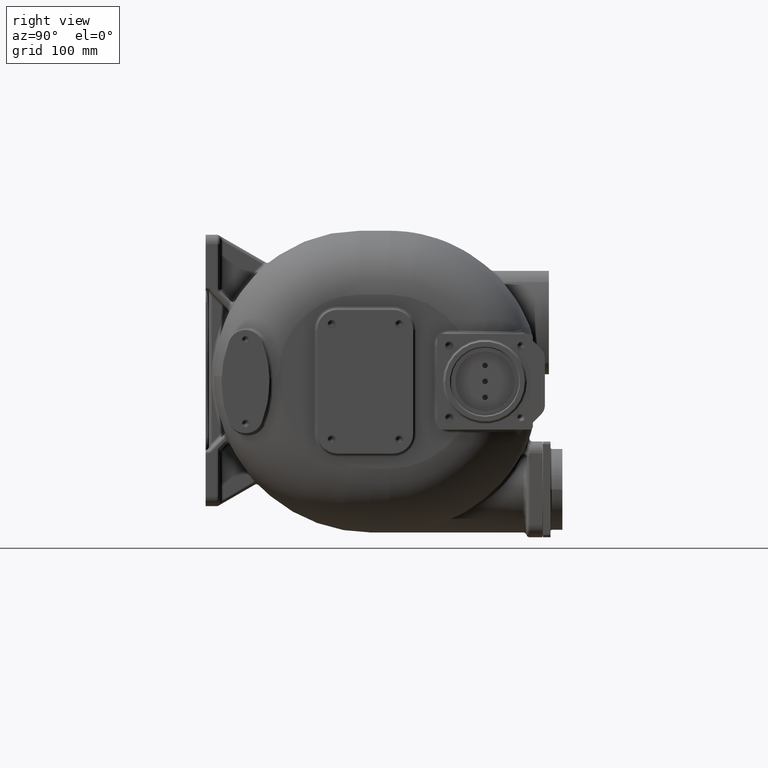
[diagram: clean part render]
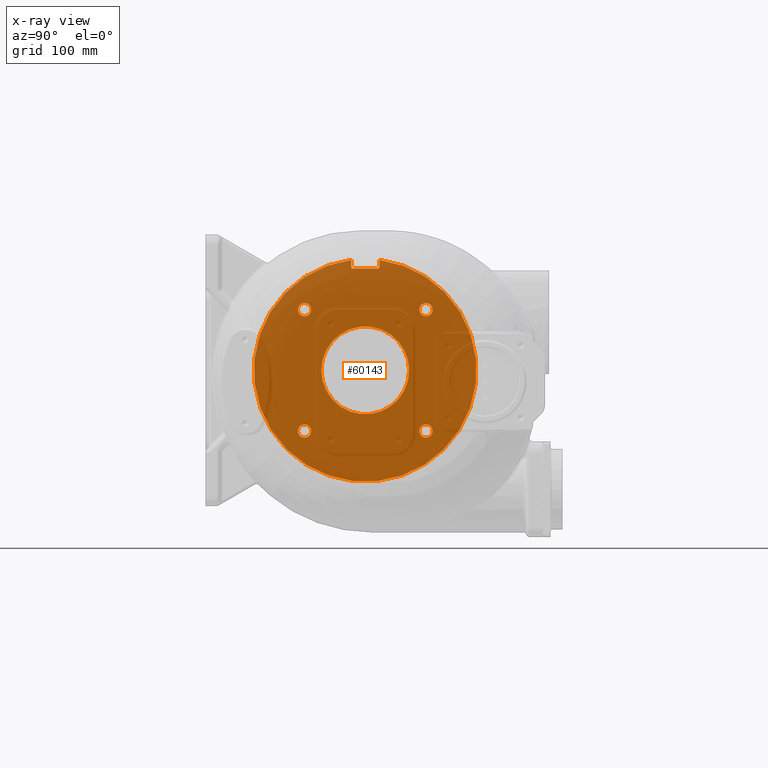
[diagram: x-ray — body ghosted, one internal face saturated and labeled with its STEP entity id]
A machine part, right view, then the same camera in x-ray: the body is ghosted and one INTERNAL B-rep face — a face not visible from any outside direction — is saturated and labeled: STEP entity #60143.
In plain terms, the highlighted planar face has unit normal (-1, 0, 0).
Its self-contained STEP definition (entity closure, byte-faithful):
#7349=CARTESIAN_POINT('',(-4.4E1,2.E2,0.E0));
#7350=DIRECTION('',(-1.E0,0.E0,0.E0));
#7351=DIRECTION('',(0.E0,-1.E0,0.E0));
#7352=AXIS2_PLACEMENT_3D('',#7349,#7350,#7351);
#7462=CARTESIAN_POINT('',(-4.4E1,2.E2,0.E0));
#7463=DIRECTION('',(1.E0,0.E0,0.E0));
#7464=DIRECTION('',(0.E0,-1.E0,0.E0));
#7465=AXIS2_PLACEMENT_3D('',#7462,#7463,#7464);
#9563=CARTESIAN_POINT('',(-4.4E1,1.239860210224E2,-7.601397897755E1));
#9564=DIRECTION('',(-1.E0,0.E0,0.E0));
#9565=DIRECTION('',(0.E0,1.E0,0.E0));
#9566=AXIS2_PLACEMENT_3D('',#9563,#9564,#9565);
#9568=CARTESIAN_POINT('',(-4.4E1,1.239860210224E2,-7.601397897755E1));
#9569=DIRECTION('',(-1.E0,0.E0,0.E0));
#9570=DIRECTION('',(0.E0,-1.E0,0.E0));
#9571=AXIS2_PLACEMENT_3D('',#9568,#9569,#9570);
#9573=CARTESIAN_POINT('',(-4.4E1,1.239860210224E2,7.601397897755E1));
#9574=DIRECTION('',(-1.E0,0.E0,0.E0));
#9575=DIRECTION('',(0.E0,0.E0,-1.E0));
#9576=AXIS2_PLACEMENT_3D('',#9573,#9574,#9575);
#9578=CARTESIAN_POINT('',(-4.4E1,1.239860210224E2,7.601397897755E1));
#9579=DIRECTION('',(-1.E0,0.E0,0.E0));
#9580=DIRECTION('',(0.E0,0.E0,1.E0));
#9581=AXIS2_PLACEMENT_3D('',#9578,#9579,#9580);
#9583=CARTESIAN_POINT('',(-4.4E1,2.760139789776E2,7.601397897755E1));
#9584=DIRECTION('',(-1.E0,0.E0,0.E0));
#9585=DIRECTION('',(0.E0,-1.E0,0.E0));
#9586=AXIS2_PLACEMENT_3D('',#9583,#9584,#9585);
#9588=CARTESIAN_POINT('',(-4.4E1,2.760139789776E2,7.601397897755E1));
#9589=DIRECTION('',(-1.E0,0.E0,0.E0));
#9590=DIRECTION('',(0.E0,1.E0,0.E0));
#9591=AXIS2_PLACEMENT_3D('',#9588,#9589,#9590);
#9593=CARTESIAN_POINT('',(-4.4E1,2.760139789776E2,-7.601397897755E1));
#9594=DIRECTION('',(-1.E0,0.E0,0.E0));
#9595=DIRECTION('',(0.E0,0.E0,1.E0));
#9596=AXIS2_PLACEMENT_3D('',#9593,#9594,#9595);
#9598=CARTESIAN_POINT('',(-4.4E1,2.760139789776E2,-7.601397897755E1));
#9599=DIRECTION('',(-1.E0,0.E0,0.E0));
#9600=DIRECTION('',(0.E0,0.E0,-1.E0));
#9601=AXIS2_PLACEMENT_3D('',#9598,#9599,#9600);
#9643=DIRECTION('',(0.E0,0.E0,-1.E0));
#9644=VECTOR('',#9643,8.485506485283E0);
#9645=CARTESIAN_POINT('',(-4.4E1,2.175E2,1.379855064853E2));
#9646=LINE('',#9645,#9644);
#9799=DIRECTION('',(0.E0,0.E0,1.E0));
#9800=VECTOR('',#9799,8.485506485283E0);
#9801=CARTESIAN_POINT('',(-4.4E1,1.825E2,1.295E2));
#9802=LINE('',#9801,#9800);
#9847=CARTESIAN_POINT('',(-4.4E1,1.795E2,1.379855064853E2));
#9848=DIRECTION('',(-1.E0,0.E0,0.E0));
#9849=DIRECTION('',(0.E0,9.906663756214E-1,1.363089586677E-1));
#9850=AXIS2_PLACEMENT_3D('',#9847,#9848,#9849);
#9852=CARTESIAN_POINT('',(-4.4E1,2.E2,0.E0));
#9853=DIRECTION('',(-1.E0,0.E0,0.E0));
#9854=DIRECTION('',(0.E0,1.256487517788E-1,9.920747911203E-1));
#9855=AXIS2_PLACEMENT_3D('',#9852,#9853,#9854);
#18493=CARTESIAN_POINT('',(-4.4E1,2.205E2,1.379855064853E2));
#18494=DIRECTION('',(1.E0,0.E0,0.E0));
#18495=DIRECTION('',(0.E0,-9.906663756214E-1,1.363089586677E-1));
#18496=AXIS2_PLACEMENT_3D('',#18493,#18494,#18495);
#18502=CARTESIAN_POINT('',(-4.4E1,1.845E2,1.295E2));
#18503=DIRECTION('',(1.E0,0.E0,0.E0));
#18504=DIRECTION('',(0.E0,-1.E0,1.421085471520E-14));
#18505=AXIS2_PLACEMENT_3D('',#18502,#18503,#18504);
#18517=DIRECTION('',(0.E0,-1.E0,0.E0));
#18518=VECTOR('',#18517,3.1E1);
#18519=CARTESIAN_POINT('',(-4.4E1,2.155E2,1.275E2));
#18520=LINE('',#18519,#18518);
#18533=CARTESIAN_POINT('',(-4.4E1,2.155E2,1.295E2));
#18534=DIRECTION('',(1.E0,0.E0,0.E0));
#18535=DIRECTION('',(0.E0,-2.131628207280E-13,-1.E0));
#18536=AXIS2_PLACEMENT_3D('',#18533,#18534,#18535);
#40832=CARTESIAN_POINT('',(-4.4E1,1.45E2,0.E0));
#40834=VERTEX_POINT('',#40832);
#40836=CARTESIAN_POINT('',(-4.4E1,2.55E2,-1.200608190966E-14));
#40838=VERTEX_POINT('',#40836);
#40840=CARTESIAN_POINT('',(-4.4E1,2.175E2,1.379855064853E2));
#40841=CARTESIAN_POINT('',(-4.4E1,2.175E2,1.295E2));
#40842=VERTEX_POINT('',#40840);
#40843=VERTEX_POINT('',#40841);
#40844=CARTESIAN_POINT('',(-4.4E1,2.155E2,1.275E2));
#40845=CARTESIAN_POINT('',(-4.4E1,1.845E2,1.275E2));
#40846=VERTEX_POINT('',#40844);
#40847=VERTEX_POINT('',#40845);
#40848=CARTESIAN_POINT('',(-4.4E1,1.825E2,1.295E2));
#40849=CARTESIAN_POINT('',(-4.4E1,1.825E2,1.379855064853E2));
#40850=VERTEX_POINT('',#40848);
#40851=VERTEX_POINT('',#40849);
#40866=CARTESIAN_POINT('',(-4.4E1,2.175280008731E2,1.383944333613E2));
#40867=VERTEX_POINT('',#40866);
#40868=CARTESIAN_POINT('',(-4.4E1,1.824719991269E2,1.383944333613E2));
#40869=VERTEX_POINT('',#40868);
#40892=CARTESIAN_POINT('',(-4.4E1,1.322360210224E2,-7.601397897755E1));
#40893=CARTESIAN_POINT('',(-4.4E1,1.157360210224E2,-7.601397897755E1));
#40894=VERTEX_POINT('',#40892);
#40895=VERTEX_POINT('',#40893);
#40900=CARTESIAN_POINT('',(-4.4E1,1.239860210224E2,6.776397897755E1));
#40901=VERTEX_POINT('',#40900);
#40902=CARTESIAN_POINT('',(-4.4E1,1.239860210224E2,8.426397897755E1));
#40903=VERTEX_POINT('',#40902);
#40908=CARTESIAN_POINT('',(-4.4E1,2.677639789776E2,7.601397897755E1));
#40909=VERTEX_POINT('',#40908);
#40910=CARTESIAN_POINT('',(-4.4E1,2.842639789776E2,7.601397897755E1));
#40911=VERTEX_POINT('',#40910);
#40916=CARTESIAN_POINT('',(-4.4E1,2.760139789776E2,-6.776397897755E1));
#40917=VERTEX_POINT('',#40916);
#40918=CARTESIAN_POINT('',(-4.4E1,2.760139789776E2,-8.426397897755E1));
#40919=VERTEX_POINT('',#40918);
#60092=CARTESIAN_POINT('',(-4.4E1,2.E2,0.E0));
#60093=DIRECTION('',(-1.E0,0.E0,0.E0));
#60094=DIRECTION('',(0.E0,1.E0,0.E0));
#60095=AXIS2_PLACEMENT_3D('',#60092,#60093,#60094);
#60096=PLANE('',#60095);
#60098=ORIENTED_EDGE('',*,*,#60097,.T.);
#60100=ORIENTED_EDGE('',*,*,#60099,.F.);
#60102=ORIENTED_EDGE('',*,*,#60101,.T.);
#60104=ORIENTED_EDGE('',*,*,#60103,.F.);
#60106=ORIENTED_EDGE('',*,*,#60105,.T.);
#60108=ORIENTED_EDGE('',*,*,#60107,.F.);
#60110=ORIENTED_EDGE('',*,*,#60109,.F.);
#60112=ORIENTED_EDGE('',*,*,#60111,.T.);
#60113=EDGE_LOOP('',(#60098,#60100,#60102,#60104,#60106,#60108,#60110,#60112));
#60114=FACE_OUTER_BOUND('',#60113,.F.);
#60115=ORIENTED_EDGE('',*,*,#53421,.T.);
#60116=ORIENTED_EDGE('',*,*,#53571,.F.);
#60117=EDGE_LOOP('',(#60115,#60116));
#60118=FACE_BOUND('',#60117,.F.);
#60120=ORIENTED_EDGE('',*,*,#60119,.T.);
#60122=ORIENTED_EDGE('',*,*,#60121,.T.);
#60123=EDGE_LOOP('',(#60120,#60122));
#60124=FACE_BOUND('',#60123,.F.);
#60126=ORIENTED_EDGE('',*,*,#60125,.T.);
#60128=ORIENTED_EDGE('',*,*,#60127,.T.);
#60129=EDGE_LOOP('',(#60126,#60128));
#60130=FACE_BOUND('',#60129,.F.);
#60132=ORIENTED_EDGE('',*,*,#60131,.T.);
#60134=ORIENTED_EDGE('',*,*,#60133,.T.);
#60135=EDGE_LOOP('',(#60132,#60134));
#60136=FACE_BOUND('',#60135,.F.);
#60138=ORIENTED_EDGE('',*,*,#60137,.T.);
#60140=ORIENTED_EDGE('',*,*,#60139,.T.);
#60141=EDGE_LOOP('',(#60138,#60140));
#60142=FACE_BOUND('',#60141,.F.);
#60143=ADVANCED_FACE('',(#60114,#60118,#60124,#60130,#60136,#60142),#60096,.T.);
#7353=CIRCLE('',#7352,5.5E1);
#7466=CIRCLE('',#7465,5.5E1);
#9567=CIRCLE('',#9566,8.25E0);
#9572=CIRCLE('',#9571,8.25E0);
#9577=CIRCLE('',#9576,8.25E0);
#9582=CIRCLE('',#9581,8.25E0);
#9587=CIRCLE('',#9586,8.25E0);
#9592=CIRCLE('',#9591,8.25E0);
#9597=CIRCLE('',#9596,8.25E0);
#9602=CIRCLE('',#9601,8.25E0);
#9851=CIRCLE('',#9850,3.E0);
#9856=CIRCLE('',#9855,1.395E2);
#18497=CIRCLE('',#18496,3.E0);
#18506=CIRCLE('',#18505,2.E0);
#18537=CIRCLE('',#18536,2.E0);
#53421=EDGE_CURVE('',#40834,#40838,#7353,.T.);
#53571=EDGE_CURVE('',#40834,#40838,#7466,.T.);
#60097=EDGE_CURVE('',#40842,#40843,#9646,.T.);
#60099=EDGE_CURVE('',#40846,#40843,#18537,.T.);
#60101=EDGE_CURVE('',#40846,#40847,#18520,.T.);
#60103=EDGE_CURVE('',#40850,#40847,#18506,.T.);
#60105=EDGE_CURVE('',#40850,#40851,#9802,.T.);
#60107=EDGE_CURVE('',#40869,#40851,#9851,.T.);
#60109=EDGE_CURVE('',#40867,#40869,#9856,.T.);
#60111=EDGE_CURVE('',#40867,#40842,#18497,.T.);
#60119=EDGE_CURVE('',#40894,#40895,#9567,.T.);
#60121=EDGE_CURVE('',#40895,#40894,#9572,.T.);
#60125=EDGE_CURVE('',#40901,#40903,#9577,.T.);
#60127=EDGE_CURVE('',#40903,#40901,#9582,.T.);
#60131=EDGE_CURVE('',#40909,#40911,#9587,.T.);
#60133=EDGE_CURVE('',#40911,#40909,#9592,.T.);
#60137=EDGE_CURVE('',#40917,#40919,#9597,.T.);
#60139=EDGE_CURVE('',#40919,#40917,#9602,.T.);